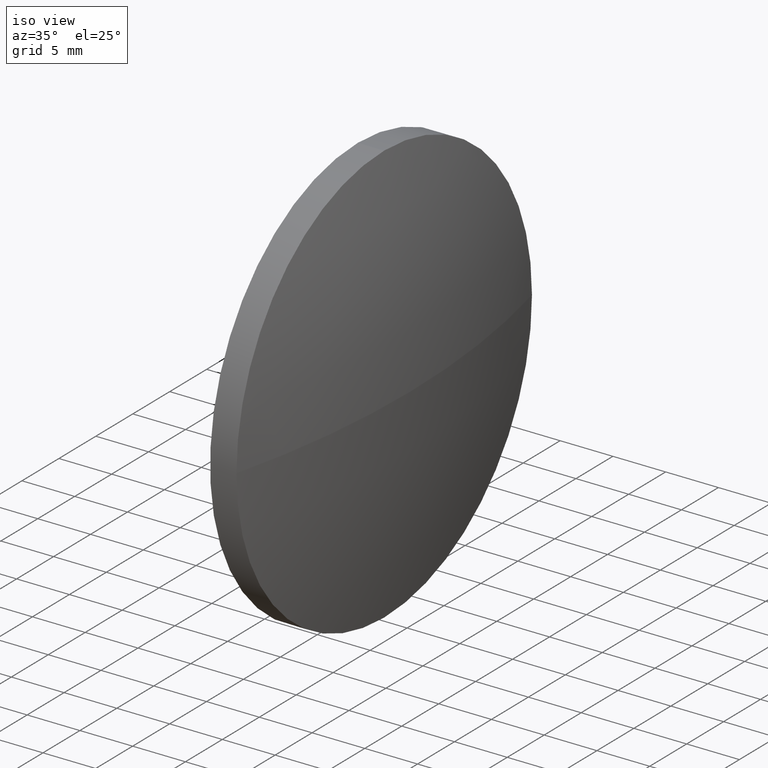
[diagram: clean part render]
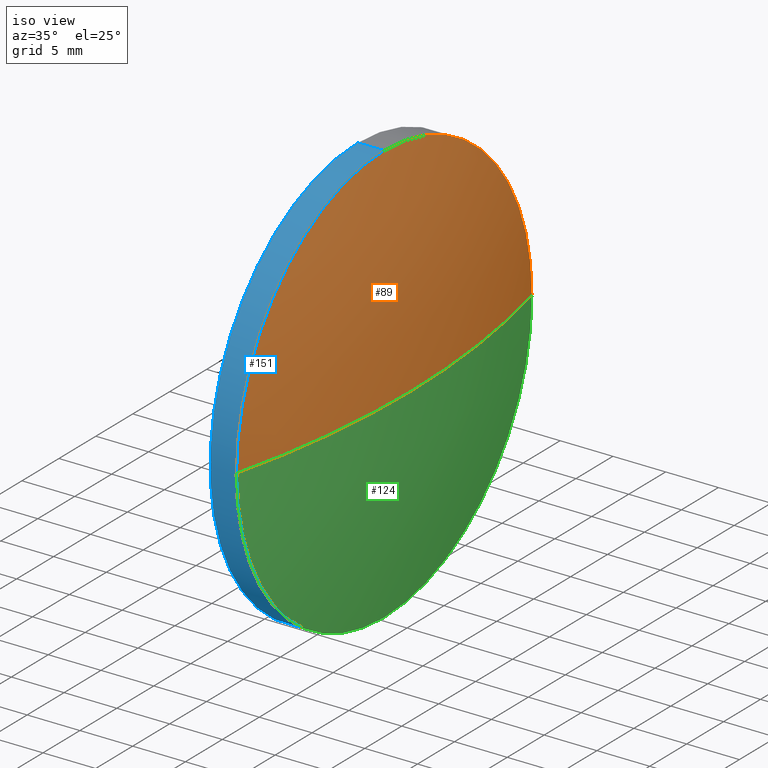
[diagram: same view with three faces highlighted in distinct colors, each labeled with its STEP entity id]
A machine part, iso view with three faces highlighted in distinct colors.
Their STEP definitions:

[orange] entity #89 — the highlighted spherical surface has radius 82.5308 mm.
#5 = AXIS2_PLACEMENT_3D ( 'NONE', #161, #34, #134 ) ;
#6 = CARTESIAN_POINT ( 'NONE',  ( 533.4993253388914800, 14.05586317027587000, 0.0000000000000000000 ) ) ;
#8 = CIRCLE ( 'NONE', #90, 82.53081300813008200 ) ;
#9 = DIRECTION ( 'NONE',  ( 0.0000000000000000000, 1.000000000000000000, 1.224646799147353200E-016 ) ) ;
#15 = EDGE_LOOP ( 'NONE', ( #45, #172, #133, #116 ) ) ;
#17 = EDGE_CURVE ( 'NONE', #61, #152, #105, .T. ) ;
#19 = CARTESIAN_POINT ( 'NONE',  ( 453.4285123307613500, 14.05586317027580800, 0.0000000000000000000 ) ) ;
#30 = EDGE_CURVE ( 'NONE', #77, #61, #110, .T. ) ;
#31 = FACE_OUTER_BOUND ( 'NONE', #15, .T. ) ;
#34 = DIRECTION ( 'NONE',  ( -0.0000000000000000000, 0.0000000000000000000, -1.000000000000000000 ) ) ;
#37 = AXIS2_PLACEMENT_3D ( 'NONE', #19, #86, #9 ) ;
#45 = ORIENTED_EDGE ( 'NONE', *, *, #91, .F. ) ;
#47 = CARTESIAN_POINT ( 'NONE',  ( 533.4993253388914800, 14.05586317027587000, 0.0000000000000000000 ) ) ;
#56 = AXIS2_PLACEMENT_3D ( 'NONE', #47, #181, #63 ) ;
#61 = VERTEX_POINT ( 'NONE', #130 ) ;
#62 = CARTESIAN_POINT ( 'NONE',  ( 533.4993253388914800, -5.944136829724194500, -2.449293598294706900E-015 ) ) ;
#63 = DIRECTION ( 'NONE',  ( 0.0000000000000000000, 0.0000000000000000000, 1.000000000000000000 ) ) ;
#68 = DIRECTION ( 'NONE',  ( -0.0000000000000000000, 0.0000000000000000000, 1.000000000000000000 ) ) ;
#70 = SPHERICAL_SURFACE ( 'NONE', #5, 82.53081300813008200 ) ;
#74 = CARTESIAN_POINT ( 'NONE',  ( 535.9593253388914000, 14.05586317027581300, 0.0000000000000000000 ) ) ;
#77 = VERTEX_POINT ( 'NONE', #62 ) ;
#82 = CARTESIAN_POINT ( 'NONE',  ( 453.4285123307613500, 14.05586317027580800, 0.0000000000000000000 ) ) ;
#86 = DIRECTION ( 'NONE',  ( 0.0000000000000000000, 1.224646799147353200E-016, -1.000000000000000000 ) ) ;
#89 = ADVANCED_FACE ( 'NONE', ( #31 ), #70, .T. ) ;
#90 = AXIS2_PLACEMENT_3D ( 'NONE', #82, #68, #142 ) ;
#91 = EDGE_CURVE ( 'NONE', #157, #77, #177, .T. ) ;
#105 = CIRCLE ( 'NONE', #126, 19.99999999999999600 ) ;
#107 = DIRECTION ( 'NONE',  ( -1.000000000000000000, -0.0000000000000000000, -0.0000000000000000000 ) ) ;
#110 = CIRCLE ( 'NONE', #56, 19.99999999999999600 ) ;
#116 = ORIENTED_EDGE ( 'NONE', *, *, #30, .F. ) ;
#126 = AXIS2_PLACEMENT_3D ( 'NONE', #6, #107, #164 ) ;
#130 = CARTESIAN_POINT ( 'NONE',  ( 533.4993253388914800, 14.05586317027587000, 19.99999999999999600 ) ) ;
#133 = ORIENTED_EDGE ( 'NONE', *, *, #17, .F. ) ;
#134 = DIRECTION ( 'NONE',  ( 0.0000000000000000000, 1.000000000000000000, 0.0000000000000000000 ) ) ;
#135 = EDGE_CURVE ( 'NONE', #157, #152, #8, .T. ) ;
#142 = DIRECTION ( 'NONE',  ( 1.000000000000000000, 0.0000000000000000000, 0.0000000000000000000 ) ) ;
#152 = VERTEX_POINT ( 'NONE', #167 ) ;
#157 = VERTEX_POINT ( 'NONE', #74 ) ;
#161 = CARTESIAN_POINT ( 'NONE',  ( 453.4285123307613500, 14.05586317027580800, 0.0000000000000000000 ) ) ;
#164 = DIRECTION ( 'NONE',  ( 0.0000000000000000000, 0.0000000000000000000, 1.000000000000000000 ) ) ;
#167 = CARTESIAN_POINT ( 'NONE',  ( 533.4993253388914800, 34.05586317027587000, 0.0000000000000000000 ) ) ;
#172 = ORIENTED_EDGE ( 'NONE', *, *, #135, .T. ) ;
#177 = CIRCLE ( 'NONE', #37, 82.53081300813008200 ) ;
#181 = DIRECTION ( 'NONE',  ( -1.000000000000000000, -0.0000000000000000000, -0.0000000000000000000 ) ) ;

[blue] entity #151 — the highlighted cylindrical surface (partial cylindrical patch) has radius 20 mm, axis along (-1, -0, -0).
#1 = DIRECTION ( 'NONE',  ( 0.0000000000000000000, 0.0000000000000000000, 1.000000000000000000 ) ) ;
#3 = VERTEX_POINT ( 'NONE', #4 ) ;
#4 = CARTESIAN_POINT ( 'NONE',  ( 533.4993253388914800, 14.05586317027587200, -19.99999999999999600 ) ) ;
#11 = DIRECTION ( 'NONE',  ( -1.000000000000000000, -0.0000000000000000000, -0.0000000000000000000 ) ) ;
#12 = CIRCLE ( 'NONE', #73, 19.99999999999999600 ) ;
#13 = CARTESIAN_POINT ( 'NONE',  ( 527.0343717279055200, 14.05586317027587000, 19.99999999999999600 ) ) ;
#16 = VERTEX_POINT ( 'NONE', #139 ) ;
#18 = VERTEX_POINT ( 'NONE', #108 ) ;
#22 = DIRECTION ( 'NONE',  ( 0.0000000000000000000, 0.0000000000000000000, 1.000000000000000000 ) ) ;
#29 = CIRCLE ( 'NONE', #127, 19.99999999999999600 ) ;
#30 = EDGE_CURVE ( 'NONE', #77, #61, #110, .T. ) ;
#35 = DIRECTION ( 'NONE',  ( 0.0000000000000000000, 0.0000000000000000000, 1.000000000000000000 ) ) ;
#36 = ORIENTED_EDGE ( 'NONE', *, *, #101, .F. ) ;
#47 = CARTESIAN_POINT ( 'NONE',  ( 533.4993253388914800, 14.05586317027587000, 0.0000000000000000000 ) ) ;
#56 = AXIS2_PLACEMENT_3D ( 'NONE', #47, #181, #63 ) ;
#58 = ORIENTED_EDGE ( 'NONE', *, *, #30, .T. ) ;
#60 = AXIS2_PLACEMENT_3D ( 'NONE', #95, #170, #35 ) ;
#61 = VERTEX_POINT ( 'NONE', #130 ) ;
#62 = CARTESIAN_POINT ( 'NONE',  ( 533.4993253388914800, -5.944136829724194500, -2.449293598294706900E-015 ) ) ;
#63 = DIRECTION ( 'NONE',  ( 0.0000000000000000000, 0.0000000000000000000, 1.000000000000000000 ) ) ;
#67 = EDGE_CURVE ( 'NONE', #16, #18, #29, .T. ) ;
#73 = AXIS2_PLACEMENT_3D ( 'NONE', #148, #185, #1 ) ;
#76 = CYLINDRICAL_SURFACE ( 'NONE', #60, 19.99999999999999600 ) ;
#77 = VERTEX_POINT ( 'NONE', #62 ) ;
#85 = ORIENTED_EDGE ( 'NONE', *, *, #67, .F. ) ;
#94 = CARTESIAN_POINT ( 'NONE',  ( 530.9993253388914800, 14.05586317027587000, 0.0000000000000000000 ) ) ;
#95 = CARTESIAN_POINT ( 'NONE',  ( 527.0343717279055200, 14.05586317027587000, 0.0000000000000000000 ) ) ;
#96 = EDGE_LOOP ( 'NONE', ( #36, #138, #58, #160, #85 ) ) ;
#101 = EDGE_CURVE ( 'NONE', #3, #16, #153, .T. ) ;
#108 = CARTESIAN_POINT ( 'NONE',  ( 530.9993253388914800, 14.05586317027587000, 19.99999999999999600 ) ) ;
#109 = VECTOR ( 'NONE', #173, 1000.000000000000000 ) ;
#110 = CIRCLE ( 'NONE', #56, 19.99999999999999600 ) ;
#127 = AXIS2_PLACEMENT_3D ( 'NONE', #94, #131, #22 ) ;
#130 = CARTESIAN_POINT ( 'NONE',  ( 533.4993253388914800, 14.05586317027587000, 19.99999999999999600 ) ) ;
#131 = DIRECTION ( 'NONE',  ( -1.000000000000000000, -0.0000000000000000000, -0.0000000000000000000 ) ) ;
#138 = ORIENTED_EDGE ( 'NONE', *, *, #141, .T. ) ;
#139 = CARTESIAN_POINT ( 'NONE',  ( 530.9993253388914800, 14.05586317027587200, -19.99999999999999600 ) ) ;
#141 = EDGE_CURVE ( 'NONE', #3, #77, #12, .T. ) ;
#147 = CARTESIAN_POINT ( 'NONE',  ( 527.0343717279055200, 14.05586317027587200, -19.99999999999999600 ) ) ;
#148 = CARTESIAN_POINT ( 'NONE',  ( 533.4993253388914800, 14.05586317027587000, 0.0000000000000000000 ) ) ;
#151 = ADVANCED_FACE ( 'NONE', ( #186 ), #76, .T. ) ;
#153 = LINE ( 'NONE', #147, #182 ) ;
#156 = LINE ( 'NONE', #13, #109 ) ;
#160 = ORIENTED_EDGE ( 'NONE', *, *, #179, .T. ) ;
#170 = DIRECTION ( 'NONE',  ( -1.000000000000000000, -0.0000000000000000000, -0.0000000000000000000 ) ) ;
#173 = DIRECTION ( 'NONE',  ( -1.000000000000000000, -0.0000000000000000000, -0.0000000000000000000 ) ) ;
#179 = EDGE_CURVE ( 'NONE', #61, #18, #156, .T. ) ;
#181 = DIRECTION ( 'NONE',  ( -1.000000000000000000, -0.0000000000000000000, -0.0000000000000000000 ) ) ;
#182 = VECTOR ( 'NONE', #11, 1000.000000000000000 ) ;
#185 = DIRECTION ( 'NONE',  ( -1.000000000000000000, -0.0000000000000000000, -0.0000000000000000000 ) ) ;
#186 = FACE_OUTER_BOUND ( 'NONE', #96, .T. ) ;

[green] entity #124 — the highlighted spherical surface has radius 82.5308 mm.
#1 = DIRECTION ( 'NONE',  ( 0.0000000000000000000, 0.0000000000000000000, 1.000000000000000000 ) ) ;
#3 = VERTEX_POINT ( 'NONE', #4 ) ;
#4 = CARTESIAN_POINT ( 'NONE',  ( 533.4993253388914800, 14.05586317027587200, -19.99999999999999600 ) ) ;
#8 = CIRCLE ( 'NONE', #90, 82.53081300813008200 ) ;
#9 = DIRECTION ( 'NONE',  ( 0.0000000000000000000, 1.000000000000000000, 1.224646799147353200E-016 ) ) ;
#12 = CIRCLE ( 'NONE', #73, 19.99999999999999600 ) ;
#19 = CARTESIAN_POINT ( 'NONE',  ( 453.4285123307613500, 14.05586317027580800, 0.0000000000000000000 ) ) ;
#33 = AXIS2_PLACEMENT_3D ( 'NONE', #42, #136, #87 ) ;
#37 = AXIS2_PLACEMENT_3D ( 'NONE', #19, #86, #9 ) ;
#38 = DIRECTION ( 'NONE',  ( 0.0000000000000000000, 1.000000000000000000, 0.0000000000000000000 ) ) ;
#42 = CARTESIAN_POINT ( 'NONE',  ( 533.4993253388914800, 14.05586317027587000, 0.0000000000000000000 ) ) ;
#51 = CARTESIAN_POINT ( 'NONE',  ( 453.4285123307613500, 14.05586317027580800, 0.0000000000000000000 ) ) ;
#62 = CARTESIAN_POINT ( 'NONE',  ( 533.4993253388914800, -5.944136829724194500, -2.449293598294706900E-015 ) ) ;
#68 = DIRECTION ( 'NONE',  ( -0.0000000000000000000, 0.0000000000000000000, 1.000000000000000000 ) ) ;
#73 = AXIS2_PLACEMENT_3D ( 'NONE', #148, #185, #1 ) ;
#74 = CARTESIAN_POINT ( 'NONE',  ( 535.9593253388914000, 14.05586317027581300, 0.0000000000000000000 ) ) ;
#77 = VERTEX_POINT ( 'NONE', #62 ) ;
#79 = ORIENTED_EDGE ( 'NONE', *, *, #169, .F. ) ;
#80 = AXIS2_PLACEMENT_3D ( 'NONE', #51, #132, #38 ) ;
#81 = CIRCLE ( 'NONE', #33, 19.99999999999999600 ) ;
#82 = CARTESIAN_POINT ( 'NONE',  ( 453.4285123307613500, 14.05586317027580800, 0.0000000000000000000 ) ) ;
#86 = DIRECTION ( 'NONE',  ( 0.0000000000000000000, 1.224646799147353200E-016, -1.000000000000000000 ) ) ;
#87 = DIRECTION ( 'NONE',  ( 0.0000000000000000000, 0.0000000000000000000, 1.000000000000000000 ) ) ;
#90 = AXIS2_PLACEMENT_3D ( 'NONE', #82, #68, #142 ) ;
#91 = EDGE_CURVE ( 'NONE', #157, #77, #177, .T. ) ;
#92 = ORIENTED_EDGE ( 'NONE', *, *, #91, .T. ) ;
#103 = SPHERICAL_SURFACE ( 'NONE', #80, 82.53081300813008200 ) ;
#124 = ADVANCED_FACE ( 'NONE', ( #163 ), #103, .T. ) ;
#128 = ORIENTED_EDGE ( 'NONE', *, *, #135, .F. ) ;
#132 = DIRECTION ( 'NONE',  ( -0.0000000000000000000, 0.0000000000000000000, -1.000000000000000000 ) ) ;
#135 = EDGE_CURVE ( 'NONE', #157, #152, #8, .T. ) ;
#136 = DIRECTION ( 'NONE',  ( -1.000000000000000000, -0.0000000000000000000, -0.0000000000000000000 ) ) ;
#140 = EDGE_LOOP ( 'NONE', ( #128, #92, #175, #79 ) ) ;
#141 = EDGE_CURVE ( 'NONE', #3, #77, #12, .T. ) ;
#142 = DIRECTION ( 'NONE',  ( 1.000000000000000000, 0.0000000000000000000, 0.0000000000000000000 ) ) ;
#148 = CARTESIAN_POINT ( 'NONE',  ( 533.4993253388914800, 14.05586317027587000, 0.0000000000000000000 ) ) ;
#152 = VERTEX_POINT ( 'NONE', #167 ) ;
#157 = VERTEX_POINT ( 'NONE', #74 ) ;
#163 = FACE_OUTER_BOUND ( 'NONE', #140, .T. ) ;
#167 = CARTESIAN_POINT ( 'NONE',  ( 533.4993253388914800, 34.05586317027587000, 0.0000000000000000000 ) ) ;
#169 = EDGE_CURVE ( 'NONE', #152, #3, #81, .T. ) ;
#175 = ORIENTED_EDGE ( 'NONE', *, *, #141, .F. ) ;
#177 = CIRCLE ( 'NONE', #37, 82.53081300813008200 ) ;
#185 = DIRECTION ( 'NONE',  ( -1.000000000000000000, -0.0000000000000000000, -0.0000000000000000000 ) ) ;